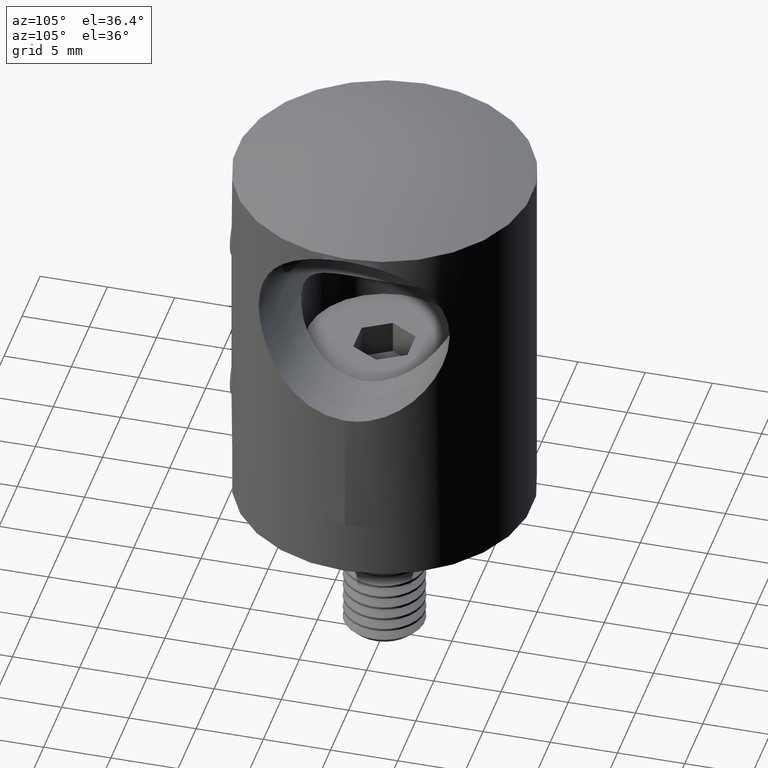
[diagram: clean part render]
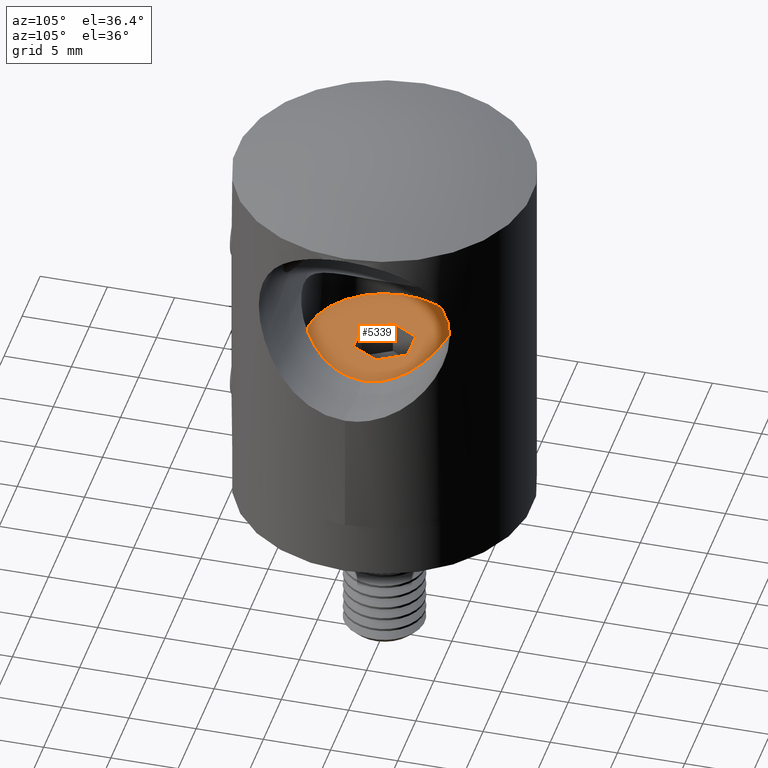
[diagram: same view with one face highlighted and labeled with its STEP entity id]
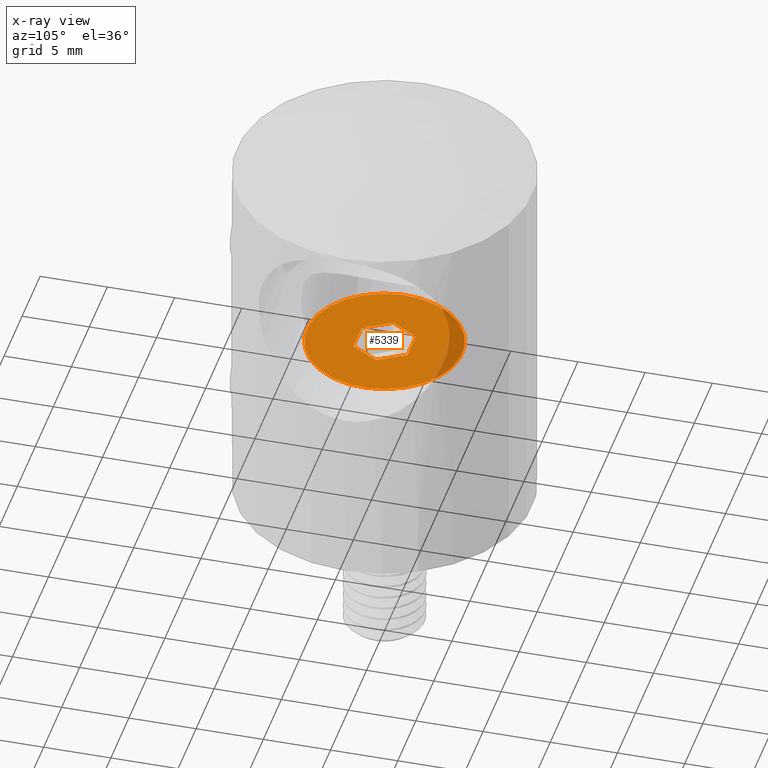
[diagram: x-ray of the same camera — body ghosted, the highlighted face saturated]
A machine part, auxiliary view. The second image highlights one B-rep face of the part: STEP entity #5339.
The next image is the same camera in x-ray: the body ghosted, the highlighted face saturated — about 9% of this face is hidden behind the body in this view.
In plain terms, the highlighted planar face has unit normal (-0, 0, 1).
Its self-contained STEP definition (entity closure, byte-faithful):
#136 = VECTOR ( 'NONE', #18997, 1000.000000000000000 ) ;
#263 = EDGE_CURVE ( 'NONE', #2131, #2131, #19312, .T. ) ;
#296 = LINE ( 'NONE', #19567, #19415 ) ;
#360 = CARTESIAN_POINT ( 'NONE',  ( 0.0000000000000000000, 2.320948082142296100, -3.233603273357869300E-017 ) ) ;
#877 = VERTEX_POINT ( 'NONE', #360 ) ;
#1319 = DIRECTION ( 'NONE',  ( 0.0000000000000000000, 1.000000000000000000, 1.868550495941741000E-016 ) ) ;
#1522 = ORIENTED_EDGE ( 'NONE', *, *, #4718, .T. ) ;
#1791 = ORIENTED_EDGE ( 'NONE', *, *, #2567, .T. ) ;
#2131 = VERTEX_POINT ( 'NONE', #2871 ) ;
#2567 = EDGE_CURVE ( 'NONE', #12795, #12279, #8766, .T. ) ;
#2770 = CARTESIAN_POINT ( 'NONE',  ( 0.0000000000000000000, 1.160474041071147600, 2.009999999999999800 ) ) ;
#2871 = CARTESIAN_POINT ( 'NONE',  ( 0.0000000000000000000, 0.0000000000000000000, 5.785000000000000100 ) ) ;
#3192 = PLANE ( 'NONE',  #7862 ) ;
#4441 = DIRECTION ( 'NONE',  ( 0.0000000000000000000, -0.5000000000000003300, 0.8660254037844383700 ) ) ;
#4718 = EDGE_CURVE ( 'NONE', #12279, #5671, #6647, .T. ) ;
#4882 = CARTESIAN_POINT ( 'NONE',  ( 0.0000000000000000000, 0.0000000000000000000, 0.0000000000000000000 ) ) ;
#5339 = ADVANCED_FACE ( 'NONE', ( #19204, #18374 ), #3192, .T. ) ;
#5671 = VERTEX_POINT ( 'NONE', #5680 ) ;
#5680 = CARTESIAN_POINT ( 'NONE',  ( -0.0000000000000000000, -1.160474041071147200, -2.009999999999999800 ) ) ;
#5779 = EDGE_LOOP ( 'NONE', ( #18401 ) ) ;
#6343 = VERTEX_POINT ( 'NONE', #6628 ) ;
#6572 = DIRECTION ( 'NONE',  ( -1.000000000000000000, 0.0000000000000000000, -0.0000000000000000000 ) ) ;
#6628 = CARTESIAN_POINT ( 'NONE',  ( 0.0000000000000000000, 1.160474041071147600, -2.009999999999999300 ) ) ;
#6647 = LINE ( 'NONE', #12129, #15011 ) ;
#6734 = LINE ( 'NONE', #2770, #16319 ) ;
#6837 = DIRECTION ( 'NONE',  ( 0.0000000000000000000, 0.0000000000000000000, 1.000000000000000000 ) ) ;
#6948 = CARTESIAN_POINT ( 'NONE',  ( 0.0000000000000000000, 1.160474041071147600, 2.009999999999999800 ) ) ;
#6992 = CARTESIAN_POINT ( 'NONE',  ( 0.0000000000000000000, -1.160474041071147200, 2.009999999999999800 ) ) ;
#7198 = VERTEX_POINT ( 'NONE', #6948 ) ;
#7293 = CARTESIAN_POINT ( 'NONE',  ( 0.0000000000000000000, -1.160474041071147200, 2.009999999999999800 ) ) ;
#7587 = ORIENTED_EDGE ( 'NONE', *, *, #14334, .T. ) ;
#7811 = ORIENTED_EDGE ( 'NONE', *, *, #21544, .T. ) ;
#7862 = AXIS2_PLACEMENT_3D ( 'NONE', #4882, #6572, #13153 ) ;
#8766 = LINE ( 'NONE', #7293, #136 ) ;
#9217 = DIRECTION ( 'NONE',  ( 0.0000000000000000000, -1.000000000000000000, 0.0000000000000000000 ) ) ;
#11739 = DIRECTION ( 'NONE',  ( -1.000000000000000000, -0.0000000000000000000, -0.0000000000000000000 ) ) ;
#11805 = EDGE_CURVE ( 'NONE', #7198, #12795, #6734, .T. ) ;
#12129 = CARTESIAN_POINT ( 'NONE',  ( -0.0000000000000000000, -2.320948082142296100, -2.915072610455690300E-018 ) ) ;
#12151 = AXIS2_PLACEMENT_3D ( 'NONE', #20143, #11739, #6837 ) ;
#12274 = LINE ( 'NONE', #21165, #19351 ) ;
#12279 = VERTEX_POINT ( 'NONE', #12794 ) ;
#12294 = EDGE_CURVE ( 'NONE', #877, #7198, #12274, .T. ) ;
#12794 = CARTESIAN_POINT ( 'NONE',  ( 0.0000000000000000000, -2.320948082142296500, 0.0000000000000000000 ) ) ;
#12795 = VERTEX_POINT ( 'NONE', #6992 ) ;
#13153 = DIRECTION ( 'NONE',  ( -0.0000000000000000000, 0.0000000000000000000, 1.000000000000000000 ) ) ;
#13429 = ORIENTED_EDGE ( 'NONE', *, *, #12294, .T. ) ;
#13532 = LINE ( 'NONE', #14626, #14847 ) ;
#14094 = EDGE_LOOP ( 'NONE', ( #1791, #1522, #7587, #7811, #13429, #19103 ) ) ;
#14334 = EDGE_CURVE ( 'NONE', #5671, #6343, #13532, .T. ) ;
#14626 = CARTESIAN_POINT ( 'NONE',  ( -0.0000000000000000000, -1.160474041071147200, -2.009999999999999800 ) ) ;
#14720 = DIRECTION ( 'NONE',  ( 0.0000000000000000000, 0.5000000000000003300, 0.8660254037844383700 ) ) ;
#14847 = VECTOR ( 'NONE', #1319, 1000.000000000000000 ) ;
#15011 = VECTOR ( 'NONE', #20242, 1000.000000000000000 ) ;
#16319 = VECTOR ( 'NONE', #9217, 1000.000000000000000 ) ;
#18374 = FACE_BOUND ( 'NONE', #14094, .T. ) ;
#18401 = ORIENTED_EDGE ( 'NONE', *, *, #263, .T. ) ;
#18997 = DIRECTION ( 'NONE',  ( -0.0000000000000000000, -0.5000000000000004400, -0.8660254037844383700 ) ) ;
#19103 = ORIENTED_EDGE ( 'NONE', *, *, #11805, .T. ) ;
#19204 = FACE_OUTER_BOUND ( 'NONE', #5779, .T. ) ;
#19312 = CIRCLE ( 'NONE', #12151, 5.785000000000000100 ) ;
#19351 = VECTOR ( 'NONE', #4441, 1000.000000000000200 ) ;
#19415 = VECTOR ( 'NONE', #14720, 1000.000000000000200 ) ;
#19567 = CARTESIAN_POINT ( 'NONE',  ( 0.0000000000000000000, 1.160474041071147600, -2.009999999999999300 ) ) ;
#20143 = CARTESIAN_POINT ( 'NONE',  ( 0.0000000000000000000, 0.0000000000000000000, 0.0000000000000000000 ) ) ;
#20242 = DIRECTION ( 'NONE',  ( 0.0000000000000000000, 0.5000000000000004400, -0.8660254037844383700 ) ) ;
#21165 = CARTESIAN_POINT ( 'NONE',  ( 0.0000000000000000000, 2.320948082142296100, -3.233603273357869300E-017 ) ) ;
#21544 = EDGE_CURVE ( 'NONE', #6343, #877, #296, .T. ) ;